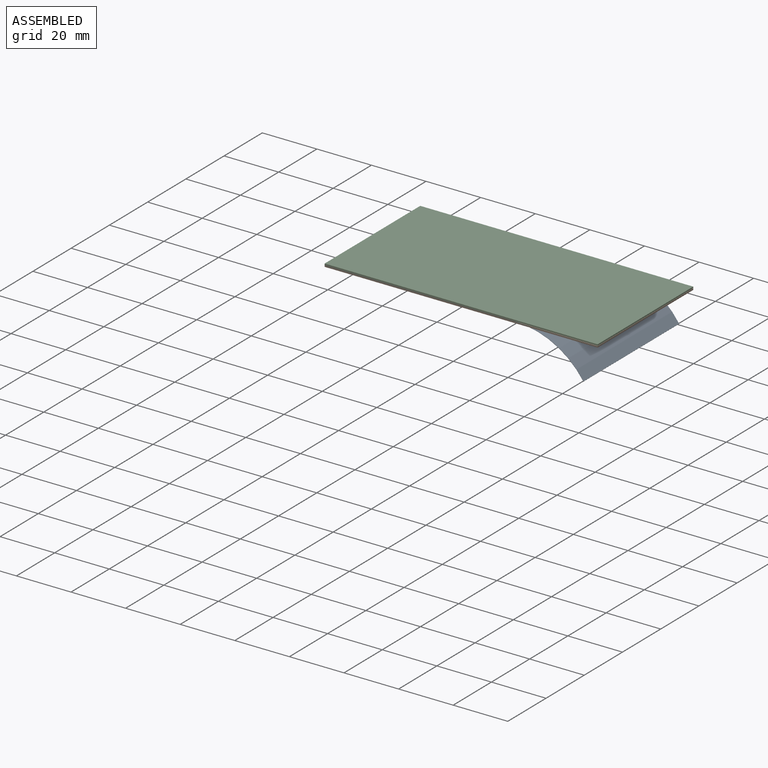
[diagram: assembled view]
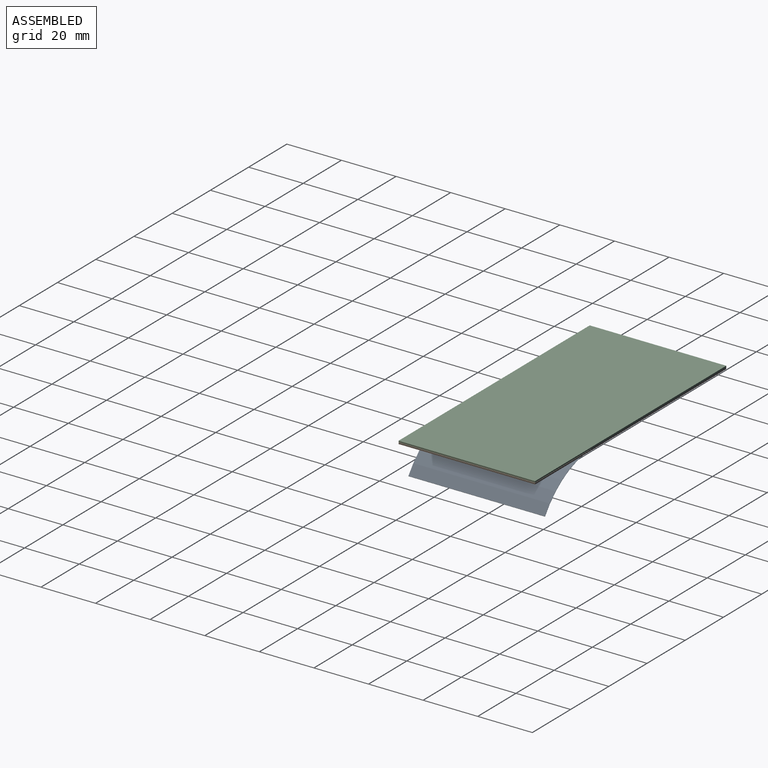
[diagram: assembled view, second angle]
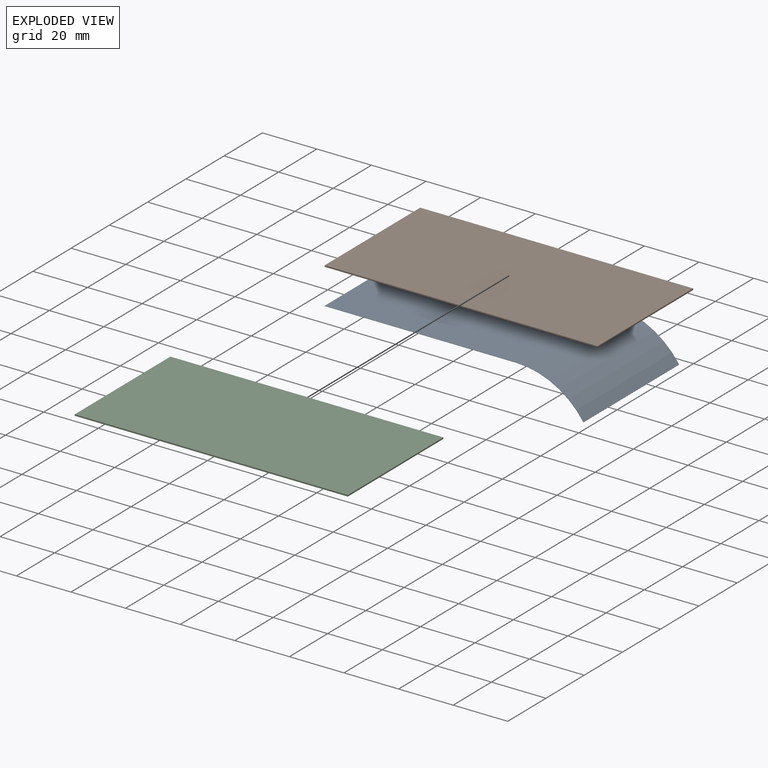
[diagram: exploded view]
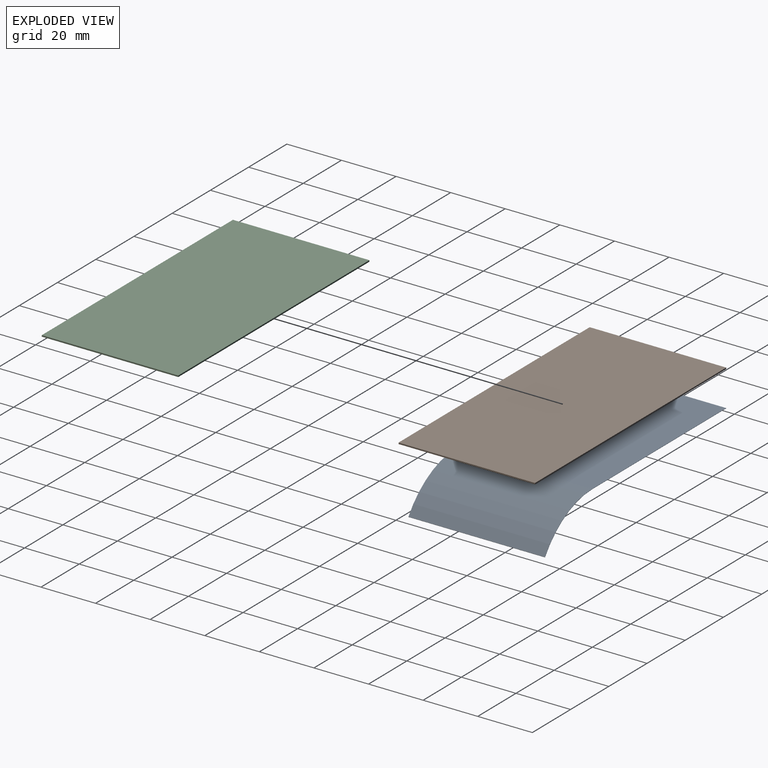
[diagram: exploded view, second angle]
ASSEMBLY  parts=3 mates=5
PART A: 8 faces, bbox 94.9x50x13.2 mm
  f0: plane 70x50mm, normal (0,0,1), area 3500mm2, adj f1,f5,f6,f7
  f1: plane 50x0.1mm, normal (-1,0,0), area 5mm2, adj f0,f2,f6,f7
  f2: plane 70x50mm, normal (0,0,-1), area 3500mm2, adj f1,f3,f6,f7
  f3: cylinder r=30mm len=50mm, axis (0,-1,0), area 1461.2mm2, adj f2,f4,f6,f7
  f4: plane 50x0.09mm, normal (0.82,0,-0.57), area 5.3mm2, adj f3,f5,f6,f7
  f5: cylinder r=30.1mm len=50mm, axis (0,-1,0), area 1464.2mm2, adj f0,f4,f6,f7
  f6: plane 94.88x13.24mm, normal (0,1,0), area 9.9mm2, adj f0,f1,f2,f3,f4,f5
  f7: plane 94.88x13.24mm, normal (0,-1,0), area 9.9mm2, adj f0,f1,f2,f3,f4,f5
PART B: 6 faces, bbox 100x50x0.5 mm
  f0: plane 50x0.5mm, normal (-1,0,0), area 25mm2, adj f1,f3,f4,f5
  f1: plane 100x50mm, normal (0,0,-1), area 5000mm2, adj f0,f2,f4,f5
  f2: plane 50x0.5mm, normal (1,0,0), area 25mm2, adj f1,f3,f4,f5
  f3: plane 100x50mm, normal (0,0,1), area 5000mm2, adj f0,f2,f4,f5
  f4: plane 100x0.5mm, normal (0,-1,0), area 50mm2, adj f0,f1,f2,f3
  f5: plane 100x0.5mm, normal (0,1,0), area 50mm2, adj f0,f1,f2,f3
PART C: same geometry as B
PLACE A t=(-22.67,-6.11,-6.92)mm
PLACE B t=(-22.67,-6.11,-7.52)mm
PLACE C t=(-22.67,-6.11,-6.92)mm fixed
MATE planar C.f4 <-> A.f7  axis (0,-1,0) through (14.15,-56.11,-6.67)mm
MATE planar C.f4 <-> B.f4  axis (0,-1,0) through (14.15,-56.11,-6.67)mm
MATE planar C.f0 <-> A.f1  axis (1,0,0) through (-35.85,-56.11,-6.92)mm
MATE planar B.f3 <-> A.f2  axis (0,0,1) through (-35.85,-56.11,-7.02)mm
MATE planar C.f1 <-> A.f0  axis (0,0,-1) through (14.15,-31.11,-6.92)mm
